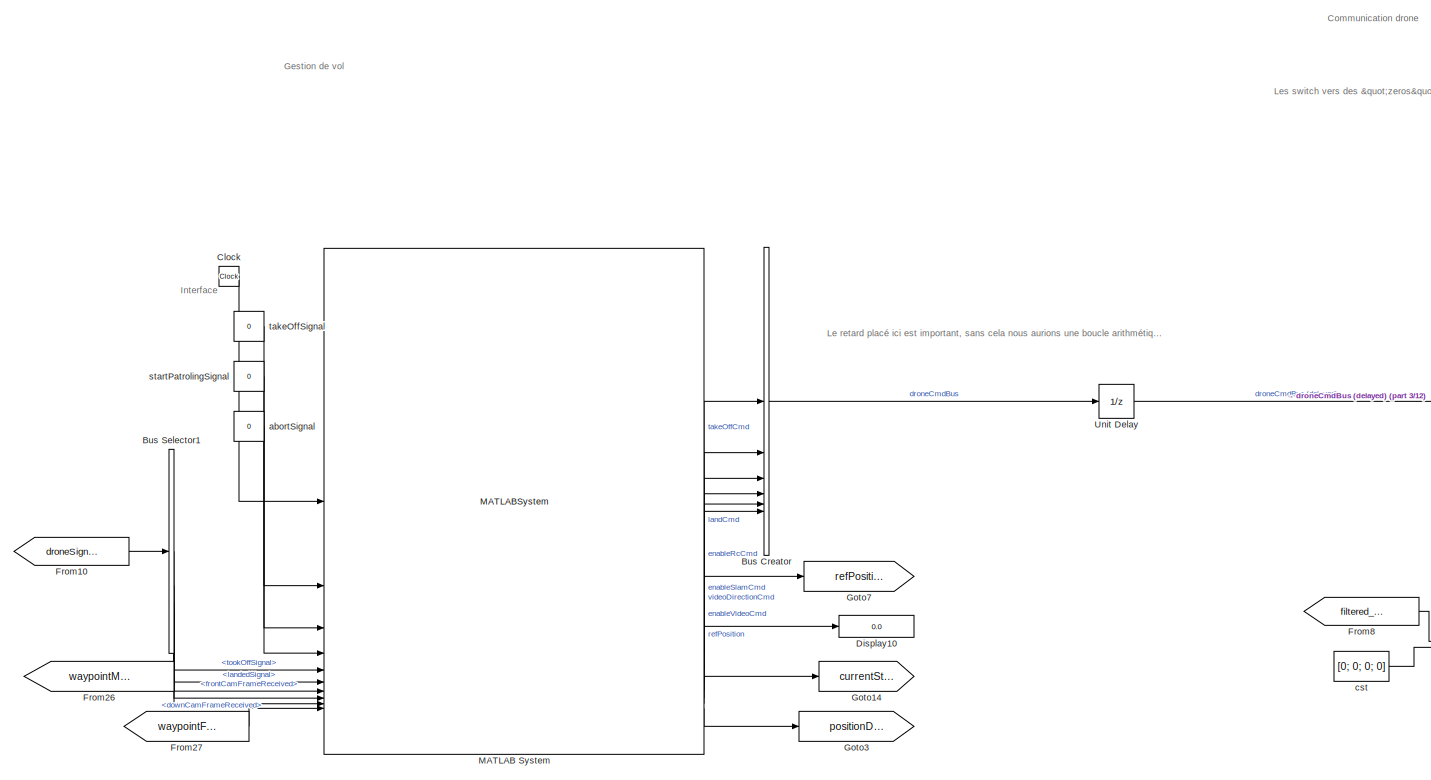
[diagram: root canvas - part 1/12, top center region]
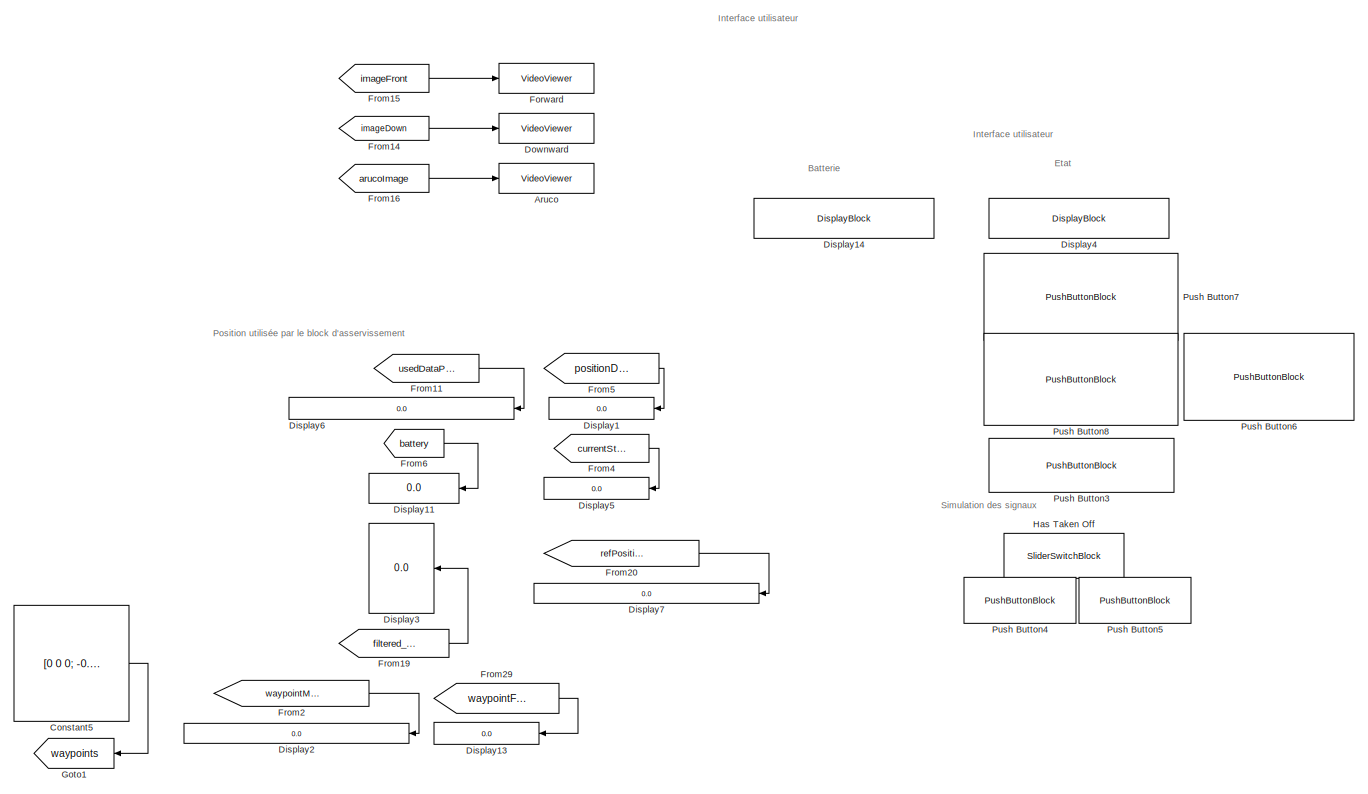
[diagram: root canvas - part 2/12, top left region]
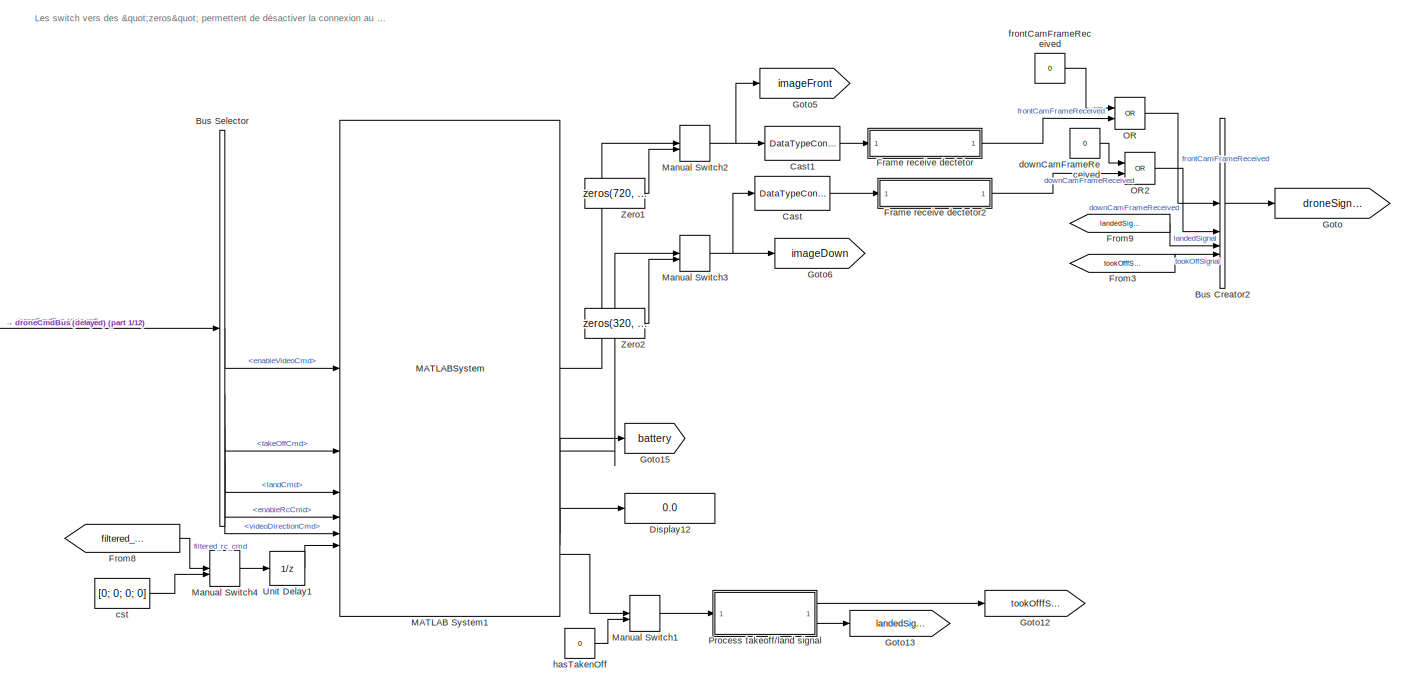
[diagram: root canvas - part 3/12, top right region]
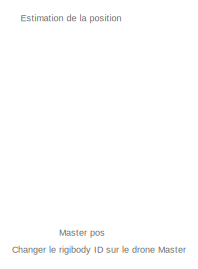
[diagram: root canvas - part 4/12, middle left region]
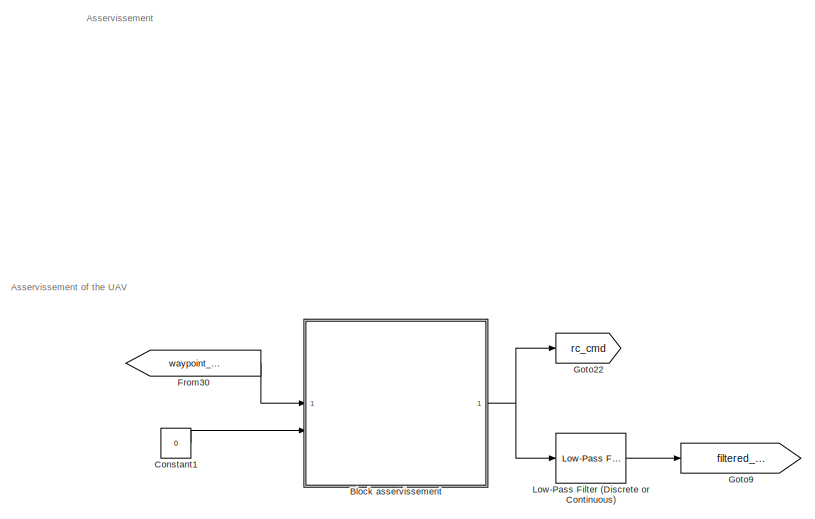
[diagram: root canvas - part 5/12, middle right region]
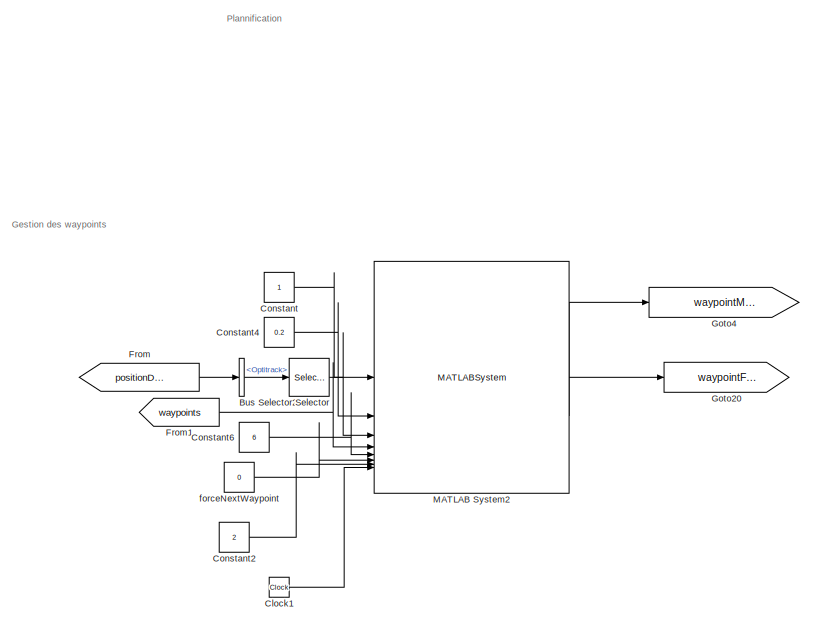
[diagram: root canvas - part 6/12, central region]
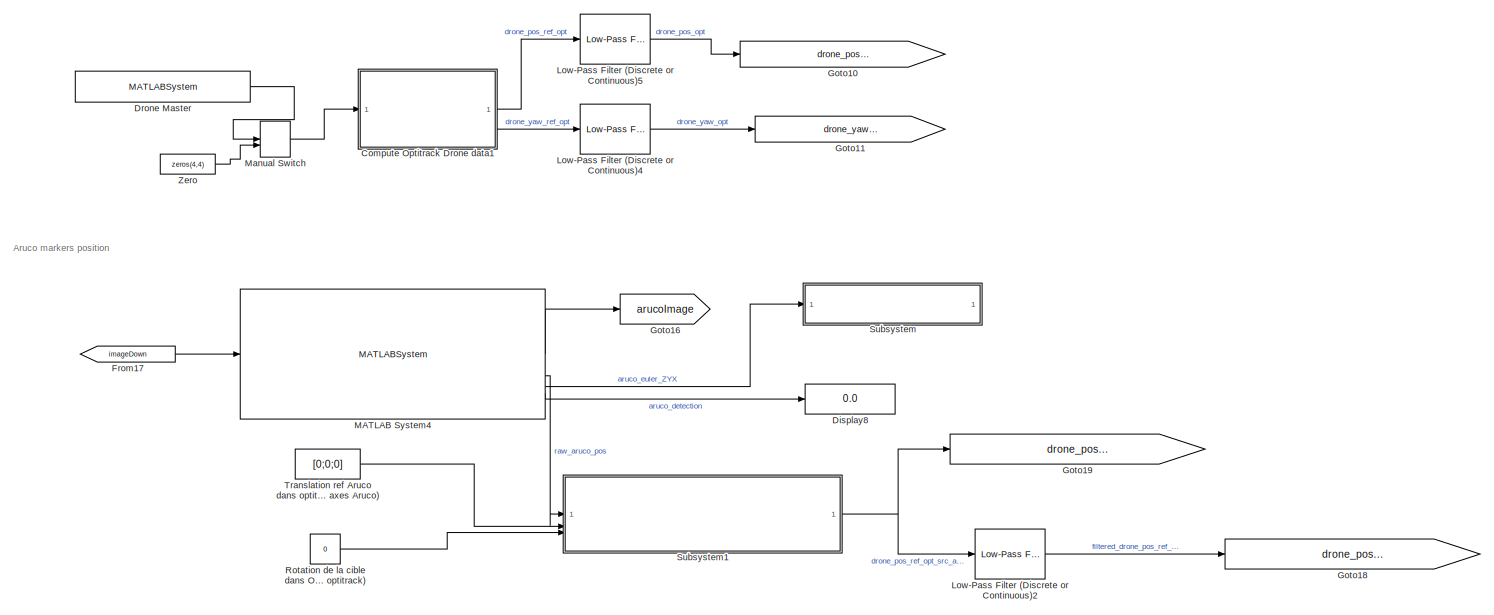
[diagram: root canvas - part 7/12, bottom left region]
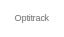
[diagram: root canvas - part 8/12, middle left region]
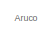
[diagram: root canvas - part 9/12, bottom left region]
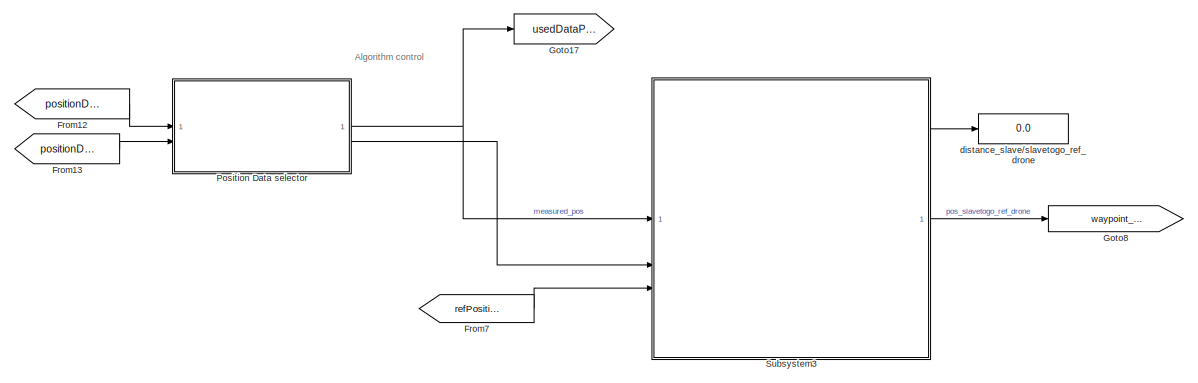
[diagram: root canvas - part 10/12, bottom center region]
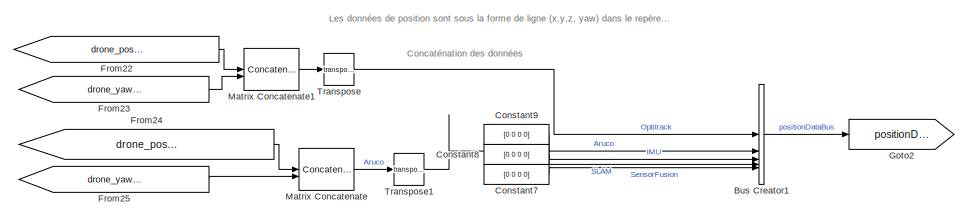
[diagram: root canvas - part 11/12, bottom left region]
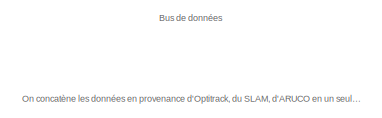
[diagram: root canvas - part 12/12, bottom left region]
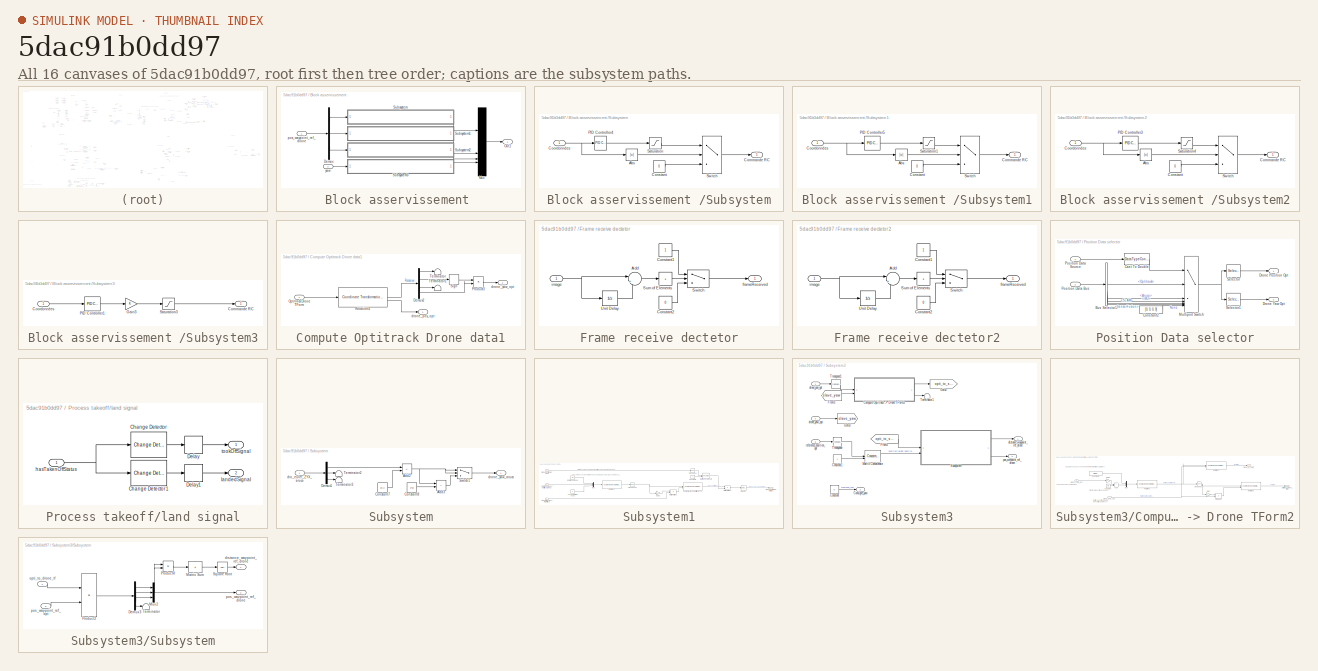
[diagram: thumbnail index - all 16 canvases of the model, root first then tree order]
MODEL slx_5dac91b0dd97
KIND model
CONFIG AbsTol = auto
CONFIG EnableMultiTasking = off
CONFIG FixedStep = 0.1
CONFIG MaxStep = auto
CONFIG MinStep = auto
CONFIG RelTol = 1e-3
CONFIG SampleTimeConstraint = Unconstrained
CONFIG SolverName = ode1
CONFIG StartTime = 0.0
CONFIG StopTime = inf
BLOCK [VideoViewer] Aruco
  FigPos = [1259 530 247.333333333333 297.333333333333]
  ScopeSpecificationString = vipscopes.VideoViewerScopeCfg('CurrentConfiguration', extmgr.ConfigurationSet(extmgr.Configuration('Core','General UI',true),extmgr.Configuration('Core','Source UI',true),extmgr.Configuration('Sources','WiredSimulink',true),extmgr.Configuration('Visuals','Video',true),extmgr.Configuration('Tools','Image Navigation Tools',true),extmgr.Configuration('Tools','Image Tool',true),extmgr.Configuration('T...<+115ch>
BLOCK [SubSystem] Block asservissement 
BLOCK [Demux] Block asservissement /Demux
  Outputs = 3
BLOCK [Mux] Block asservissement /Mux
  DisplayOption = bar
BLOCK [Outport] Block asservissement /Out1
BLOCK [SubSystem] Block asservissement /Subsystem
BLOCK [Abs] Block asservissement /Subsystem/Abs
  SaturateOnIntegerOverflow = off
BLOCK [Outport] Block asservissement /Subsystem/Commande RC
BLOCK [Constant] Block asservissement /Subsystem/Constant
  Value = 0
BLOCK [Inport] Block asservissement /Subsystem/Coordonnées
BLOCK [Reference] Block asservissement /Subsystem/PID Controller4  REF=slpidlib/PID Controller
  LibrarySourceBlock = simulink/Continuous/PID Controller
  SourceBlock = slpidlib/PID Controller
  SourceType = PID 1dof
BLOCK [Saturate] Block asservissement /Subsystem/Saturation
  LowerLimit = -30
  UpperLimit = 30
BLOCK [Switch] Block asservissement /Subsystem/Switch
  Criteria = u2 > Threshold
  InputSameDT = off
  SaturateOnIntegerOverflow = off
  Threshold = 0.01
BLOCK [SubSystem] Block asservissement /Subsystem1
BLOCK [Abs] Block asservissement /Subsystem1/Abs
  SaturateOnIntegerOverflow = off
BLOCK [Outport] Block asservissement /Subsystem1/Commande RC
BLOCK [Constant] Block asservissement /Subsystem1/Constant
  Value = 0
BLOCK [Inport] Block asservissement /Subsystem1/Coordonnées
BLOCK [Reference] Block asservissement /Subsystem1/PID Controller5  REF=slpidlib/PID Controller
  LibrarySourceBlock = simulink/Continuous/PID Controller
  SourceBlock = slpidlib/PID Controller
  SourceType = PID 1dof
BLOCK [Saturate] Block asservissement /Subsystem1/Saturation1
  LowerLimit = -30
  UpperLimit = 30
BLOCK [Switch] Block asservissement /Subsystem1/Switch
  Criteria = u2 > Threshold
  InputSameDT = off
  SaturateOnIntegerOverflow = off
  Threshold = 0.01
BLOCK [SubSystem] Block asservissement /Subsystem2
BLOCK [Abs] Block asservissement /Subsystem2/Abs
  SaturateOnIntegerOverflow = off
BLOCK [Outport] Block asservissement /Subsystem2/Commande RC
BLOCK [Constant] Block asservissement /Subsystem2/Constant
  Value = 0
BLOCK [Inport] Block asservissement /Subsystem2/Coordonnées
BLOCK [Reference] Block asservissement /Subsystem2/PID Controller3  REF=slpidlib/PID Controller
  LibrarySourceBlock = simulink/Continuous/PID Controller
  SourceBlock = slpidlib/PID Controller
  SourceType = PID 1dof
BLOCK [Saturate] Block asservissement /Subsystem2/Saturation4
  LowerLimit = -30
  UpperLimit = 30
BLOCK [Switch] Block asservissement /Subsystem2/Switch
  Criteria = u2 > Threshold
  InputSameDT = off
  SaturateOnIntegerOverflow = off
  Threshold = 0.01
BLOCK [SubSystem] Block asservissement /Subsystem3
BLOCK [Outport] Block asservissement /Subsystem3/Commande RC
BLOCK [Inport] Block asservissement /Subsystem3/Coordonnées
BLOCK [Gain] Block asservissement /Subsystem3/Gain3
BLOCK [Reference] Block asservissement /Subsystem3/PID Controller1  REF=slpidlib/PID Controller
  LibrarySourceBlock = simulink/Continuous/PID Controller
  SourceBlock = slpidlib/PID Controller
  SourceType = PID 1dof
BLOCK [Saturate] Block asservissement /Subsystem3/Saturation3
  LowerLimit = -50
  UpperLimit = 50
BLOCK [Inport] Block asservissement /pos_waypoint_ref_drone
BLOCK [Inport] Block asservissement /yaw
  Port = 2
BLOCK [BusCreator] Bus Creator
  DisplayOption = bar
  InheritFromInputs = on
  Inputs = 6
BLOCK [BusCreator] Bus Creator1
  DisplayOption = bar
  InheritFromInputs = on
  Inputs = 5
BLOCK [BusCreator] Bus Creator2
  DisplayOption = bar
  InheritFromInputs = on
  Inputs = 4
BLOCK [BusSelector] Bus Selector
  OutputSignals = enableVideoCmd,takeOffCmd,landCmd,enableRcCmd,videoDirectionCmd
BLOCK [BusSelector] Bus Selector1
  OutputSignals = tookOffSignal,landedSignal,frontCamFrameReceived,downCamFrameReceived
BLOCK [BusSelector] Bus Selector2
  OutputSignals = Optitrack
BLOCK [DataTypeConversion] Cast
  RndMeth = Floor
  SaturateOnIntegerOverflow = off
BLOCK [DataTypeConversion] Cast1
  RndMeth = Floor
  SaturateOnIntegerOverflow = off
BLOCK [Clock] Clock
BLOCK [Clock] Clock1
BLOCK [SubSystem] Compute Optitrack Drone data1
BLOCK [Demux] Compute Optitrack Drone data1/Demux2
BLOCK [Inport] Compute Optitrack Drone data1/Optitrack Drone TForm
BLOCK [Product] Compute Optitrack Drone data1/Product3
BLOCK [Reference] Compute Optitrack Drone data1/Rotation4  REF=robotcorelib/Coordinate Transformation Conversion
  LibrarySourceBlock = uavutilslib/Coordinate Transformation Conversion
  SourceBlock = robotcorelib/Coordinate Transformation Conversion
  SourceType = robotics.slcore.internal.block.CoordinateTransformationConversion
BLOCK [Signum] Compute Optitrack Drone data1/Sign
BLOCK [Terminator] Compute Optitrack Drone data1/Terminator
BLOCK [Terminator] Compute Optitrack Drone data1/Terminator1
BLOCK [Outport] Compute Optitrack Drone data1/drone_pos_opt
BLOCK [Outport] Compute Optitrack Drone data1/drone_yaw_opt
  Port = 2
BLOCK [Constant] Constant
BLOCK [Constant] Constant1
  Value = 0
BLOCK [Constant] Constant2
  Value = 2
BLOCK [Constant] Constant4
  Value = 0.2
BLOCK [Constant] Constant5
  Value = [0 0 0; -0.5 1 0.5;  0.5 2 0.5; 0.5 1 -0.5; -0.5 2 0.5; 0 1 0]
BLOCK [Constant] Constant6
  Value = 6
BLOCK [Constant] Constant7
  Value = [0 0 0 0]
BLOCK [Constant] Constant8
  Value = [0 0 0 0]
BLOCK [Constant] Constant9
  Value = [0 0 0 0]
BLOCK [Display] Display1
  Decimation = 1
  NameLocation = top
BLOCK [Display] Display10
  Decimation = 1
BLOCK [Display] Display11
  Decimation = 1
  NameLocation = top
BLOCK [Display] Display12
  Decimation = 1
BLOCK [Display] Display13
  Decimation = 1
  NameLocation = top
BLOCK [DisplayBlock] Display14
  Format = Custom
  FormatString = Battery : %s/100
  LabelPosition = Hide
  Transparency = 1
BLOCK [Display] Display2
  Decimation = 1
  NameLocation = top
BLOCK [Display] Display3
  Decimation = 1
  NameLocation = top
BLOCK [DisplayBlock] Display4
  Format = Integer
  FormatString = %s
  LabelPosition = Hide
  Transparency = 1
BLOCK [Display] Display5
  Decimation = 1
  NameLocation = top
BLOCK [Display] Display6
  Decimation = 1
  NameLocation = top
BLOCK [Display] Display7
  Decimation = 1
  NameLocation = top
BLOCK [Display] Display8
  Decimation = 1
BLOCK [VideoViewer] Downward
  Commented = on
  FigPos = [1261.66666666667 919.333333333333 248 307.333333333333]
  ScopeSpecificationString = vipscopes.VideoViewerScopeCfg('CurrentConfiguration', extmgr.ConfigurationSet(extmgr.Configuration('Core','General UI',true),extmgr.Configuration('Core','Source UI',true),extmgr.Configuration('Sources','WiredSimulink',true),extmgr.Configuration('Visuals','Video',true),extmgr.Configuration('Tools','Image Navigation Tools',true),extmgr.Configuration('Tools','Image Tool',true),extmgr.Configuration('T...<+140ch>
BLOCK [MATLABSystem] Drone Master
  ClientIP = 10.147.125.17
  HostIP = 10.147.125.15
  MaskDisplay = disp('OptilinkSystem');\nport_label('output',1,'Drones data');\nport_label('output',2,'Connected');
  MaskType = OptilinkSystem
  RigidbodyID = 1
  SimulateUsing = Interpreted execution
  System = OptilinkSystem
BLOCK [VideoViewer] Forward
  FigPos = [616.333333333333 756 875.333333333333 522.666666666667]
  ScopeSpecificationString = vipscopes.VideoViewerScopeCfg('CurrentConfiguration', extmgr.ConfigurationSet(extmgr.Configuration('Core','General UI',true),extmgr.Configuration('Core','Source UI',true),extmgr.Configuration('Sources','WiredSimulink',true),extmgr.Configuration('Visuals','Video',true),extmgr.Configuration('Tools','Image Navigation Tools',true),extmgr.Configuration('Tools','Image Tool',true),extmgr.Configuration('T...<+127ch>
BLOCK [SubSystem] Frame receive dectetor
BLOCK [Sum] Frame receive dectetor/Add
  Inputs = |+-
BLOCK [Constant] Frame receive dectetor/Constant1
BLOCK [Constant] Frame receive dectetor/Constant2
  Value = 0
BLOCK [Sum] Frame receive dectetor/Sum of Elements
  IconShape = rectangular
  Inputs = +
BLOCK [Switch] Frame receive dectetor/Switch
  Criteria = u2 > Threshold
  InputSameDT = off
  SaturateOnIntegerOverflow = off
BLOCK [UnitDelay] Frame receive dectetor/Unit Delay
  HasFrameUpgradeWarning = on
  SampleTime = -1
BLOCK [Outport] Frame receive dectetor/frameReceived
BLOCK [Inport] Frame receive dectetor/image
BLOCK [SubSystem] Frame receive dectetor2
BLOCK [Sum] Frame receive dectetor2/Add
  Inputs = |+-
BLOCK [Constant] Frame receive dectetor2/Constant1
BLOCK [Constant] Frame receive dectetor2/Constant2
  Value = 0
BLOCK [Sum] Frame receive dectetor2/Sum of Elements
  IconShape = rectangular
  Inputs = +
BLOCK [Switch] Frame receive dectetor2/Switch
  Criteria = u2 > Threshold
  InputSameDT = off
  SaturateOnIntegerOverflow = off
BLOCK [UnitDelay] Frame receive dectetor2/Unit Delay
  HasFrameUpgradeWarning = on
  SampleTime = -1
BLOCK [Outport] Frame receive dectetor2/frameReceived
BLOCK [Inport] Frame receive dectetor2/image
BLOCK [From] From
  GotoTag = positionDataBus
BLOCK [From] From1
  GotoTag = waypoints
BLOCK [From] From10
  GotoTag = droneSignalBus
BLOCK [From] From11
  GotoTag = usedDataPos
BLOCK [From] From12
  GotoTag = positionDataSrc
BLOCK [From] From13
  GotoTag = positionDataBus
BLOCK [From] From14
  GotoTag = imageDown
BLOCK [From] From15
  GotoTag = imageFront
BLOCK [From] From16
  GotoTag = arucoImage
BLOCK [From] From17
  GotoTag = imageDown
BLOCK [From] From19
  GotoTag = filtered_rc_cmd
BLOCK [From] From2
  GotoTag = waypointManagerOut
BLOCK [From] From20
  GotoTag = refPosition
BLOCK [From] From22
  GotoTag = drone_pos_master_opt_filtered
BLOCK [From] From23
  GotoTag = drone_yaw_master_opt_filtered
BLOCK [From] From24
  GotoTag = drone_pos_ref_opt_src_aruco_filtered
BLOCK [From] From25
  GotoTag = drone_yaw_master_opt_filtered
BLOCK [From] From26
  GotoTag = waypointManagerOut
BLOCK [From] From27
  GotoTag = waypointFinished
BLOCK [From] From29
  GotoTag = waypointFinished
BLOCK [From] From3
  GotoTag = tookOfffSignal
BLOCK [From] From30
  GotoTag = waypoint_pos_ref_drone
BLOCK [From] From4
  GotoTag = currentState
BLOCK [From] From5
  GotoTag = positionDataSrc
BLOCK [From] From6
  GotoTag = battery
BLOCK [From] From7
  GotoTag = refPosition
BLOCK [From] From8
  GotoTag = filtered_rc_cmd
BLOCK [From] From9
  GotoTag = landedSignal
BLOCK [Goto] Goto
  GotoTag = droneSignalBus
BLOCK [Goto] Goto1
  GotoTag = waypoints
  NameLocation = top
BLOCK [Goto] Goto10
  GotoTag = drone_pos_master_opt_filtered
BLOCK [Goto] Goto11
  GotoTag = drone_yaw_master_opt_filtered
BLOCK [Goto] Goto12
  GotoTag = tookOfffSignal
BLOCK [Goto] Goto13
  GotoTag = landedSignal
BLOCK [Goto] Goto14
  GotoTag = currentState
BLOCK [Goto] Goto15
  GotoTag = battery
BLOCK [Goto] Goto16
  GotoTag = arucoImage
BLOCK [Goto] Goto17
  GotoTag = usedDataPos
BLOCK [Goto] Goto18
  GotoTag = drone_pos_ref_opt_src_aruco_filtered
BLOCK [Goto] Goto19
  GotoTag = drone_pos_ref_opt_src_aruco
BLOCK [Goto] Goto2
  GotoTag = positionDataBus
BLOCK [Goto] Goto20
  GotoTag = waypointFinished
BLOCK [Goto] Goto22
  GotoTag = rc_cmd
BLOCK [Goto] Goto3
  GotoTag = positionDataSrc
BLOCK [Goto] Goto4
  GotoTag = waypointManagerOut
BLOCK [Goto] Goto5
  GotoTag = imageFront
BLOCK [Goto] Goto6
  GotoTag = imageDown
BLOCK [Goto] Goto7
  GotoTag = refPosition
BLOCK [Goto] Goto8
  GotoTag = waypoint_pos_ref_drone
BLOCK [Goto] Goto9
  GotoTag = filtered_rc_cmd
BLOCK [SliderSwitchBlock] Has Taken Off
BLOCK [Reference] Low-Pass Filter (Discrete or Continuous)  REF=eeGeneralControl/Low-Pass Filter
(Discrete or Continuous)
  LibrarySourceBlock = ee_sl_lib/General Control/Low-Pass Filter\n(Discrete or Continuous)
  SourceBlock = eeGeneralControl/Low-Pass Filter\n(Discrete or Continuous)
  SourceType = Low-Pass Filter (Discrete or Continuous)
BLOCK [Reference] Low-Pass Filter (Discrete or Continuous)2  REF=eeGeneralControl/Low-Pass Filter
(Discrete or Continuous)
  LibrarySourceBlock = ee_sl_lib/General Control/Low-Pass Filter\n(Discrete or Continuous)
  SourceBlock = eeGeneralControl/Low-Pass Filter\n(Discrete or Continuous)
  SourceType = Low-Pass Filter (Discrete or Continuous)
BLOCK [Reference] Low-Pass Filter (Discrete or Continuous)4  REF=eeGeneralControl/Low-Pass Filter
(Discrete or Continuous)
  LibrarySourceBlock = ee_sl_lib/General Control/Low-Pass Filter\n(Discrete or Continuous)
  SourceBlock = eeGeneralControl/Low-Pass Filter\n(Discrete or Continuous)
  SourceType = Low-Pass Filter (Discrete or Continuous)
BLOCK [Reference] Low-Pass Filter (Discrete or Continuous)5  REF=eeGeneralControl/Low-Pass Filter
(Discrete or Continuous)
  LibrarySourceBlock = ee_sl_lib/General Control/Low-Pass Filter\n(Discrete or Continuous)
  SourceBlock = eeGeneralControl/Low-Pass Filter\n(Discrete or Continuous)
  SourceType = Low-Pass Filter (Discrete or Continuous)
BLOCK [MATLABSystem] MATLAB System
  HomePosition = [ 0, 1.5, 0 ]
  MaskDisplay = disp('DroneSequenceManager');\nport_label('input',1,'time');\nport_label('input',2,'takeOffSignal');\nport_label('input',3,'startPatrolingSignal');\nport_label('input',4,'abortSignal');\nport_label('input',5,'tookOffSignal');\nport_label('input',6,'landedSignal');\nport_label('input',7,'frontCamFrameReceived');\nport_label('input',8,'downCamFrameReceived');\nport_label('input',9,'waypointToFollow');\nport_l...<+414ch>
  MaskType = DroneSequenceManager
  SimulateUsing = Code generation
  System = DroneSequenceManager
BLOCK [MATLABSystem] MATLAB System1
  MaskDisplay = disp('Tello_drone_control');\nport_label('input',1,'enableVideo');\nport_label('input',2,'tkoff');\nport_label('input',3,'landing');\nport_label('input',4,'enableRC');\nport_label('input',5,'cmdVideoDirection');\nport_label('input',6,'rcspeeds');\nport_label('output',1,'imageFront');\nport_label('output',2,'imageDown');\nport_label('output',3,'Eulerangles');\nport_label('output',4,'speedXYZ');\nport_label('o...<+117ch>
  MaskType = Tello_drone_control
  SimulateUsing = Interpreted execution
  System = Tello_drone_control
  droneIP = 127.0.0.1
BLOCK [MATLABSystem] MATLAB System2
  MaskDisplay = disp('WaypointManager');\nport_label('input',1,'enable');\nport_label('input',2,'acceptableDistance');\nport_label('input',3,'currentPos');\nport_label('input',4,'waypoints');\nport_label('input',5,'numWaypoints');\nport_label('input',6,'forceNextWaypoint');\nport_label('input',7,'requiredTime');\nport_label('input',8,'time');\nport_label('output',1,'waypoint');\nport_label('output',2,'finished');\nport_labe...<+36ch>
  MaskType = WaypointManager
  SimulateUsing = Code generation
  System = WaypointManager
BLOCK [MATLABSystem] MATLAB System4
  MaskDisplay = disp('ArucoMarkerDetection');\nport_label('input',1,'I');\nport_label('output',1,'output_image');\nport_label('output',2,'camera_pos_ref_aruco');\nport_label('output',3,'euler_angles');\nport_label('output',4,'detection');
  MaskType = ArucoMarkerDetection
  SimulateUsing = Interpreted execution
  System = ArucoMarkerDetection
  focalLength = [222.5, 224]
  imageSize = [240,320]
  markerFamily = DICT_4X4_250
  markerSizeInMM = 150
  maxMarkers = 1
  principalPoint = [156 ,116]
BLOCK [ManualSwitch] Manual Switch
BLOCK [ManualSwitch] Manual Switch1
BLOCK [ManualSwitch] Manual Switch2
BLOCK [ManualSwitch] Manual Switch3
BLOCK [ManualSwitch] Manual Switch4
BLOCK [Concatenate] Matrix Concatenate
  ConcatenateDimension = 2
BLOCK [Concatenate] Matrix Concatenate1
  ConcatenateDimension = 2
BLOCK [Logic] OR
  AllPortsSameDT = off
  IconShape = distinctive
  Operator = OR
  OutDataTypeStr = boolean
BLOCK [Logic] OR2
  AllPortsSameDT = off
  IconShape = distinctive
  Operator = OR
  OutDataTypeStr = boolean
BLOCK [SubSystem] Position Data selector
BLOCK [BusSelector] Position Data selector/Bus Selector3
  OutputSignals = Optitrack,Aruco,IMU,SLAM,SensorFusion
BLOCK [DataTypeConversion] Position Data selector/Cast To Double
  OutDataTypeStr = double
  RndMeth = Floor
  SaturateOnIntegerOverflow = off
BLOCK [Constant] Position Data selector/Constant2
  Value = [0, 0, 0, 0]
BLOCK [Outport] Position Data selector/Drone Position Opt
BLOCK [Outport] Position Data selector/Drone Yaw Opt
  Port = 2
BLOCK [MultiPortSwitch] Position Data selector/Multiport Switch
  DataPortIndices = {2,3,4,5,6,1}
  DataPortOrder = Specify indices
  DiagnosticForDefault = None
  InputSameDT = off
  Inputs = 6
  SaturateOnIntegerOverflow = off
BLOCK [Inport] Position Data selector/Position Data Bus
  Port = 2
BLOCK [Inport] Position Data selector/Position Data Source
BLOCK [Selector] Position Data selector/Selector
  IndexOptions = Index vector (dialog)
  Indices = [1 2 3]
  InputPortWidth = 4
  OutputSizes = 1
BLOCK [Selector] Position Data selector/Selector1
  IndexOptions = Index vector (dialog)
  Indices = [4]
  InputPortWidth = 4
  OutputSizes = 1
BLOCK [SubSystem] Process takeoff//land signal
BLOCK [Reference] Process takeoff//land signal/Change Detector  REF=eeGeneralControl/Change Detector
  LibrarySourceBlock = ee_sl_lib/General Control/Change Detector
  SourceBlock = eeGeneralControl/Change Detector
  SourceType = Change Detector
BLOCK [Reference] Process takeoff//land signal/Change Detector1  REF=eeGeneralControl/Change Detector
  LibrarySourceBlock = ee_sl_lib/General Control/Change Detector
  SourceBlock = eeGeneralControl/Change Detector
  SourceType = Change Detector
BLOCK [Delay] Process takeoff//land signal/Delay
  DelayLength = 20
  InputPortMap = u0
BLOCK [Delay] Process takeoff//land signal/Delay1
  DelayLength = 20
  InputPortMap = u0
BLOCK [Inport] Process takeoff//land signal/hasTakenOffStatus 
BLOCK [Outport] Process takeoff//land signal/landedSignal
  Port = 2
BLOCK [Outport] Process takeoff//land signal/tookOffSignal
BLOCK [PushButtonBlock] Push Button3
  ButtonText = Force next waypoint
  OffValue = 0.000000
BLOCK [PushButtonBlock] Push Button4
  ButtonText = Front cam received
  OffValue = 0.000000
BLOCK [PushButtonBlock] Push Button5
  ButtonText = Down cam received
  OffValue = 0.000000
BLOCK [PushButtonBlock] Push Button6
  ButtonText = Start patrol
  OffValue = 0.000000
  Opacity = 0.8
BLOCK [PushButtonBlock] Push Button7
  ButtonText = Take off
  OffValue = 0.000000
BLOCK [PushButtonBlock] Push Button8
  ButtonText = Land
  OffValue = 0.000000
BLOCK [Constant] Rotation de la cible dans Optitrack (Axe Y optitrack)
  Value = 0
BLOCK [Selector] Selector
  IndexOptions = Index vector (dialog)
  Indices = [1 2 3]
  InputPortWidth = 4
  OutputSizes = 1
BLOCK [SubSystem] Subsystem
BLOCK [Sum] Subsystem/Add2
  IconShape = rectangular
  Inputs = +-
BLOCK [Sum] Subsystem/Add3
  IconShape = rectangular
BLOCK [Constant] Subsystem/Constant7
  Value = pi/2
BLOCK [Constant] Subsystem/Constant8
  Value = 2*pi
BLOCK [Demux] Subsystem/Demux1
  Outputs = 3
BLOCK [Switch] Subsystem/Switch1
  Criteria = u2 > Threshold
  InputSameDT = off
  SaturateOnIntegerOverflow = off
  Threshold = -pi
BLOCK [Terminator] Subsystem/Terminator2
BLOCK [Terminator] Subsystem/Terminator3
BLOCK [Inport] Subsystem/dro_euler_ZYX_aruco
BLOCK [Outport] Subsystem/drone_yaw_aruco
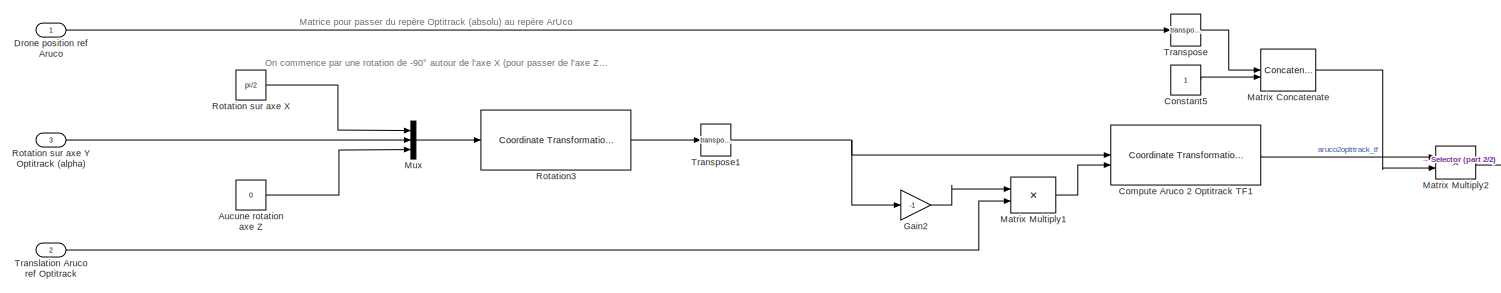
[diagram: Subsystem1 - part 1/2, most of the canvas]
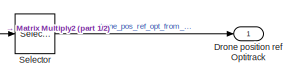
[diagram: Subsystem1 - part 2/2, middle right region]
BLOCK [SubSystem] Subsystem1
BLOCK [Constant] Subsystem1/Aucune rotation axe Z
  Value = 0
BLOCK [Reference] Subsystem1/Compute Aruco 2 Optitrack TF1  REF=robotcorelib/Coordinate Transformation Conversion
  LibrarySourceBlock = uavutilslib/Coordinate Transformation Conversion
  SourceBlock = robotcorelib/Coordinate Transformation Conversion
  SourceType = robotics.slcore.internal.block.CoordinateTransformationConversion
BLOCK [Constant] Subsystem1/Constant5
BLOCK [Inport] Subsystem1/Drone position ref Aruco
BLOCK [Outport] Subsystem1/Drone position ref Optitrack
BLOCK [Gain] Subsystem1/Gain2
  Gain = -1
BLOCK [Concatenate] Subsystem1/Matrix Concatenate
  ConcatenateDimension = 2
BLOCK [Product] Subsystem1/Matrix Multiply1
  Multiplication = Matrix(*)
BLOCK [Product] Subsystem1/Matrix Multiply2
  Multiplication = Matrix(*)
BLOCK [Mux] Subsystem1/Mux
  DisplayOption = bar
  Inputs = 3
BLOCK [Constant] Subsystem1/Rotation sur axe X
  Value = pi/2
BLOCK [Inport] Subsystem1/Rotation sur axe Y Optitrack (alpha)
  Port = 3
BLOCK [Reference] Subsystem1/Rotation3  REF=robotcorelib/Coordinate Transformation Conversion
  LibrarySourceBlock = uavutilslib/Coordinate Transformation Conversion
  SourceBlock = robotcorelib/Coordinate Transformation Conversion
  SourceType = robotics.slcore.internal.block.CoordinateTransformationConversion
BLOCK [Selector] Subsystem1/Selector
  IndexOptions = Index vector (dialog)
  Indices = [1 2 3]
  InputPortWidth = 4
  OutputSizes = 1
BLOCK [Inport] Subsystem1/Translation Aruco ref Optitrack
  Port = 2
BLOCK [Math] Subsystem1/Transpose
  Operator = transpose
BLOCK [Math] Subsystem1/Transpose1
  Operator = transpose
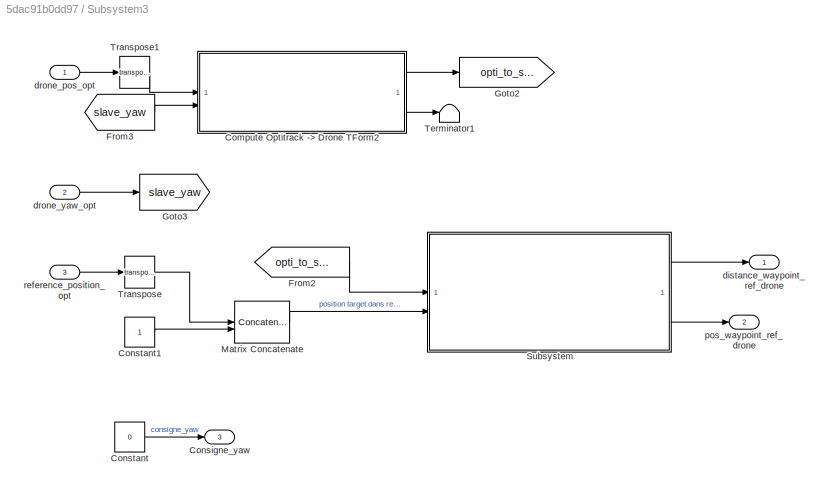
BLOCK [SubSystem] Subsystem3
BLOCK [SubSystem] Subsystem3/Compute Optitrack -> Drone TForm2
BLOCK [Sum] Subsystem3/Compute Optitrack -> Drone TForm2/Add
  IconShape = rectangular
BLOCK [Constant] Subsystem3/Compute Optitrack -> Drone TForm2/Constant
  Value = pi/2
BLOCK [Constant] Subsystem3/Compute Optitrack -> Drone TForm2/Constant1
  Value = [pi/2; 0]
BLOCK [Gain] Subsystem3/Compute Optitrack -> Drone TForm2/Gain
  Gain = -1
BLOCK [Gain] Subsystem3/Compute Optitrack -> Drone TForm2/Gain2
  Gain = -1
BLOCK [Mux] Subsystem3/Compute Optitrack -> Drone TForm2/Mux
  DisplayOption = bar
  Inputs = 2
BLOCK [Product] Subsystem3/Compute Optitrack -> Drone TForm2/Product1
  Multiplication = Matrix(*)
BLOCK [Reference] Subsystem3/Compute Optitrack -> Drone TForm2/Rotation1  REF=robotcorelib/Coordinate Transformation Conversion
  LibrarySourceBlock = uavutilslib/Coordinate Transformation Conversion
  SourceBlock = robotcorelib/Coordinate Transformation Conversion
  SourceType = robotics.slcore.internal.block.CoordinateTransformationConversion
BLOCK [Reference] Subsystem3/Compute Optitrack -> Drone TForm2/Rotation2  REF=robotcorelib/Coordinate Transformation Conversion
  LibrarySourceBlock = uavutilslib/Coordinate Transformation Conversion
  SourceBlock = robotcorelib/Coordinate Transformation Conversion
  SourceType = robotics.slcore.internal.block.CoordinateTransformationConversion
BLOCK [Reference] Subsystem3/Compute Optitrack -> Drone TForm2/Rotation3  REF=robotcorelib/Coordinate Transformation Conversion
  LibrarySourceBlock = uavutilslib/Coordinate Transformation Conversion
  SourceBlock = robotcorelib/Coordinate Transformation Conversion
  SourceType = robotics.slcore.internal.block.CoordinateTransformationConversion
BLOCK [Math] Subsystem3/Compute Optitrack -> Drone TForm2/Transpose1
  Operator = transpose
BLOCK [Inport] Subsystem3/Compute Optitrack -> Drone TForm2/drone_pos_opt
BLOCK [Outport] Subsystem3/Compute Optitrack -> Drone TForm2/drone_to_opti_tf
  Port = 2
BLOCK [Inport] Subsystem3/Compute Optitrack -> Drone TForm2/drone_yaw_opt
  Port = 2
BLOCK [Outport] Subsystem3/Compute Optitrack -> Drone TForm2/optitrack2drone_tform
BLOCK [Outport] Subsystem3/Consigne_yaw
  Port = 3
BLOCK [Constant] Subsystem3/Constant
  Value = 0
BLOCK [Constant] Subsystem3/Constant1
BLOCK [From] Subsystem3/From2
  GotoTag = opti_to_slave_tf
BLOCK [From] Subsystem3/From3
  GotoTag = slave_yaw
BLOCK [Goto] Subsystem3/Goto2
  GotoTag = opti_to_slave_tf
BLOCK [Goto] Subsystem3/Goto3
  GotoTag = slave_yaw
BLOCK [Concatenate] Subsystem3/Matrix Concatenate
  ConcatenateDimension = 2
BLOCK [SubSystem] Subsystem3/Subsystem
BLOCK [Demux] Subsystem3/Subsystem/Demux3
BLOCK [Sum] Subsystem3/Subsystem/Matrix Sum
  IconShape = rectangular
  Inputs = +
BLOCK [Mux] Subsystem3/Subsystem/Mux2
  DisplayOption = bar
  Inputs = 3
BLOCK [Product] Subsystem3/Subsystem/Product2
  Multiplication = Matrix(*)
BLOCK [Product] Subsystem3/Subsystem/Product4
BLOCK [Sqrt] Subsystem3/Subsystem/Square Root
BLOCK [Terminator] Subsystem3/Subsystem/Terminator
BLOCK [Outport] Subsystem3/Subsystem/distance_waypoint_ref_drone
BLOCK [Inport] Subsystem3/Subsystem/opti_to_drone_tf
BLOCK [Outport] Subsystem3/Subsystem/pos_waypoint_ref_drone
  Port = 2
BLOCK [Inport] Subsystem3/Subsystem/pos_waypoint_ref_opt
  Port = 2
BLOCK [Terminator] Subsystem3/Terminator1
BLOCK [Math] Subsystem3/Transpose
  Operator = transpose
BLOCK [Math] Subsystem3/Transpose1
  Operator = transpose
BLOCK [Outport] Subsystem3/distance_waypoint_ref_drone
BLOCK [Inport] Subsystem3/drone_pos_opt
BLOCK [Inport] Subsystem3/drone_yaw_opt
  Port = 2
BLOCK [Outport] Subsystem3/pos_waypoint_ref_drone
  Port = 2
BLOCK [Inport] Subsystem3/reference_position_opt
  Port = 3
BLOCK [Constant] Translation ref Aruco dans optitrack (dans les axes Aruco) 
  Value = [0;0;0]
BLOCK [Math] Transpose
  Operator = transpose
BLOCK [Math] Transpose1
  Operator = transpose
BLOCK [UnitDelay] Unit Delay
  HasFrameUpgradeWarning = on
  SampleTime = -1
BLOCK [UnitDelay] Unit Delay1
  HasFrameUpgradeWarning = on
  InitialCondition = [0,0,0,0]
  SampleTime = -1
BLOCK [Constant] Zero
  OutDataTypeStr = Inherit: Inherit via back propagation
  Value = zeros(4,4)
BLOCK [Constant] Zero1
  OutDataTypeStr = Inherit: Inherit via back propagation
  Value = zeros(720, 960, 3)
BLOCK [Constant] Zero2
  OutDataTypeStr = Inherit: Inherit via back propagation
  Value = zeros(320, 240)
BLOCK [Constant] abortSignal
  Value = 0
BLOCK [Constant] cst
  Value = [0; 0; 0; 0]
BLOCK [Display] distance_slave//slavetogo_ref_drone
  Decimation = 1
BLOCK [Constant] downCamFrameReceived
  Value = 0
BLOCK [Constant] forceNextWaypoint
  Value = 0
BLOCK [Constant] frontCamFrameReceived
  Value = 0
BLOCK [Constant] hasTakenOff
  Value = 0
BLOCK [Constant] startPatrolingSignal
  Value = 0
BLOCK [Constant] takeOffSignal
  Value = 0
ANNOTATION (root): Etat
ANNOTATION (root): Le retard placé ici est important, sans cela nous aurions une boucle arithmétique
ANNOTATION (root): Batterie
ANNOTATION (root): Interface utilisateur
ANNOTATION (root): Simulation des signaux
ANNOTATION (root): Les switch vers des "zeros" permettent de désactiver la connexion au drone lors de tests
ANNOTATION (root): On concatène les données en provenance d'Optitrack, du SLAM, d'ARUCO en un seul bus
ANNOTATION (root): Bus de données
ANNOTATION (root): Aruco
ANNOTATION (root): Estimation de la position
ANNOTATION (root): Optitrack
ANNOTATION (root): Asservissement
ANNOTATION (root): Communication drone
ANNOTATION (root): Gestion de vol
ANNOTATION (root): Plannification
ANNOTATION (root): Algorithm control
ANNOTATION (root): Aruco markers position
ANNOTATION (root): Asservissement of the UAV
ANNOTATION (root): Changer le rigibody ID sur le drone Master
ANNOTATION (root): Concaténation des données
ANNOTATION (root): Gestion des waypoints
ANNOTATION (root): Interface
ANNOTATION (root): Les données de position sont sous la forme de ligne (x,y,z, yaw) dans le repère absolu (Optitrack)
ANNOTATION (root): Master pos
ANNOTATION (root): Position utilisée par le block d'asservissement
ANNOTATION Subsystem1: Matrice pour passer du repère Optitrack (absolu) au repère ArUco
ANNOTATION Subsystem1: On commence par une rotation de -90° autour de l'axe X (pour passer de l'axe Z vers l'axe Y)
ANNOTATION Subsystem3/Compute Optitrack -> Drone TForm2: pi/2 Correspond au changement de référentiel Optitrack -> Drone
ANNOTATION Subsystem3/Compute Optitrack -> Drone TForm2: Optitrack position in meters in the Optitrack reference
ANNOTATION Subsystem3/Compute Optitrack -> Drone TForm2: Yaw angle expressed in radians
ANNOTATION Subsystem3/Compute Optitrack -> Drone TForm2: Offset pour la position de départ
LINE Block asservissement /Demux:1 -> Block asservissement /Subsystem:1
LINE Block asservissement /Demux:2 -> Block asservissement /Subsystem1:1
LINE Block asservissement /Demux:3 -> Block asservissement /Subsystem2:1
LINE Block asservissement /Mux:1 -> Block asservissement /Out1:1
LINE Block asservissement /Subsystem/Abs:1 -> Block asservissement /Subsystem/Switch:2
LINE Block asservissement /Subsystem/Constant:1 -> Block asservissement /Subsystem/Switch:3
NET Block asservissement /Subsystem/Coordonnées:1 -> Block asservissement /Subsystem/Abs:1, Block asservissement /Subsystem/PID Controller4:1
LINE Block asservissement /Subsystem/PID Controller4:1 -> Block asservissement /Subsystem/Saturation:1
LINE Block asservissement /Subsystem/Saturation:1 -> Block asservissement /Subsystem/Switch:1
LINE Block asservissement /Subsystem/Switch:1 -> Block asservissement /Subsystem/Commande RC:1
LINE Block asservissement /Subsystem1/Abs:1 -> Block asservissement /Subsystem1/Switch:2
LINE Block asservissement /Subsystem1/Constant:1 -> Block asservissement /Subsystem1/Switch:3
NET Block asservissement /Subsystem1/Coordonnées:1 -> Block asservissement /Subsystem1/Abs:1, Block asservissement /Subsystem1/PID Controller5:1
LINE Block asservissement /Subsystem1/PID Controller5:1 -> Block asservissement /Subsystem1/Saturation1:1
LINE Block asservissement /Subsystem1/Saturation1:1 -> Block asservissement /Subsystem1/Switch:1
LINE Block asservissement /Subsystem1/Switch:1 -> Block asservissement /Subsystem1/Commande RC:1
LINE Block asservissement /Subsystem1:1 -> Block asservissement /Mux:2
LINE Block asservissement /Subsystem2/Abs:1 -> Block asservissement /Subsystem2/Switch:2
LINE Block asservissement /Subsystem2/Constant:1 -> Block asservissement /Subsystem2/Switch:3
NET Block asservissement /Subsystem2/Coordonnées:1 -> Block asservissement /Subsystem2/Abs:1, Block asservissement /Subsystem2/PID Controller3:1
LINE Block asservissement /Subsystem2/PID Controller3:1 -> Block asservissement /Subsystem2/Saturation4:1
LINE Block asservissement /Subsystem2/Saturation4:1 -> Block asservissement /Subsystem2/Switch:1
LINE Block asservissement /Subsystem2/Switch:1 -> Block asservissement /Subsystem2/Commande RC:1
LINE Block asservissement /Subsystem2:1 -> Block asservissement /Mux:3
LINE Block asservissement /Subsystem3/Coordonnées:1 -> Block asservissement /Subsystem3/PID Controller1:1
LINE Block asservissement /Subsystem3/Gain3:1 -> Block asservissement /Subsystem3/Saturation3:1
LINE Block asservissement /Subsystem3/PID Controller1:1 -> Block asservissement /Subsystem3/Gain3:1
LINE Block asservissement /Subsystem3/Saturation3:1 -> Block asservissement /Subsystem3/Commande RC:1
LINE Block asservissement /Subsystem3:1 -> Block asservissement /Mux:4
LINE Block asservissement /Subsystem:1 -> Block asservissement /Mux:1
LINE Block asservissement /pos_waypoint_ref_drone:1 -> Block asservissement /Demux:1
LINE Block asservissement /yaw:1 -> Block asservissement /Subsystem3:1
NET Block asservissement :1 -> Goto22:1, Low-Pass Filter (Discrete or Continuous):1
LINE Bus Creator1:1 -> Goto2:1
LINE Bus Creator2:1 -> Goto:1
LINE Bus Creator:1 -> Unit Delay:1
LINE Bus Selector1:1 -> MATLAB System:5
LINE Bus Selector1:2 -> MATLAB System:6
LINE Bus Selector1:3 -> MATLAB System:7
LINE Bus Selector1:4 -> MATLAB System:8
LINE Bus Selector2:1 -> Selector:1
LINE Bus Selector:1 -> MATLAB System1:1
LINE Bus Selector:2 -> MATLAB System1:2
LINE Bus Selector:3 -> MATLAB System1:3
LINE Bus Selector:4 -> MATLAB System1:4
LINE Bus Selector:5 -> MATLAB System1:5
LINE Cast1:1 -> Frame receive dectetor:1
LINE Cast:1 -> Frame receive dectetor2:1
LINE Clock1:1 -> MATLAB System2:8
LINE Clock:1 -> MATLAB System:1
LINE Compute Optitrack Drone data1/Demux2:1 -> Compute Optitrack Drone data1/Terminator:1
LINE Compute Optitrack Drone data1/Demux2:2 -> Compute Optitrack Drone data1/Sign:1
LINE Compute Optitrack Drone data1/Demux2:3 -> Compute Optitrack Drone data1/Terminator1:1
LINE Compute Optitrack Drone data1/Demux2:4 -> Compute Optitrack Drone data1/Product3:2
LINE Compute Optitrack Drone data1/Optitrack Drone TForm:1 -> Compute Optitrack Drone data1/Rotation4:1
LINE Compute Optitrack Drone data1/Product3:1 -> Compute Optitrack Drone data1/drone_yaw_opt:1
LINE Compute Optitrack Drone data1/Rotation4:1 -> Compute Optitrack Drone data1/Demux2:1
LINE Compute Optitrack Drone data1/Rotation4:2 -> Compute Optitrack Drone data1/drone_pos_opt:1
LINE Compute Optitrack Drone data1/Sign:1 -> Compute Optitrack Drone data1/Product3:1
LINE Compute Optitrack Drone data1:1 -> Low-Pass Filter (Discrete or Continuous)5:1
LINE Compute Optitrack Drone data1:2 -> Low-Pass Filter (Discrete or Continuous)4:1
LINE Constant1:1 -> Block asservissement :2
LINE Constant2:1 -> MATLAB System2:7
LINE Constant4:1 -> MATLAB System2:2
LINE Constant5:1 -> Goto1:1
LINE Constant6:1 -> MATLAB System2:5
LINE Constant7:1 -> Bus Creator1:5
LINE Constant8:1 -> Bus Creator1:4
LINE Constant9:1 -> Bus Creator1:3
LINE Constant:1 -> MATLAB System2:1
LINE Drone Master:1 -> Manual Switch:1
LINE Frame receive dectetor/Add:1 -> Frame receive dectetor/Sum of Elements:1
LINE Frame receive dectetor/Constant1:1 -> Frame receive dectetor/Switch:1
LINE Frame receive dectetor/Constant2:1 -> Frame receive dectetor/Switch:3
LINE Frame receive dectetor/Sum of Elements:1 -> Frame receive dectetor/Switch:2
LINE Frame receive dectetor/Switch:1 -> Frame receive dectetor/frameReceived:1
LINE Frame receive dectetor/Unit Delay:1 -> Frame receive dectetor/Add:2
NET Frame receive dectetor/image:1 -> Frame receive dectetor/Add:1, Frame receive dectetor/Unit Delay:1
LINE Frame receive dectetor2/Add:1 -> Frame receive dectetor2/Sum of Elements:1
LINE Frame receive dectetor2/Constant1:1 -> Frame receive dectetor2/Switch:1
LINE Frame receive dectetor2/Constant2:1 -> Frame receive dectetor2/Switch:3
LINE Frame receive dectetor2/Sum of Elements:1 -> Frame receive dectetor2/Switch:2
LINE Frame receive dectetor2/Switch:1 -> Frame receive dectetor2/frameReceived:1
LINE Frame receive dectetor2/Unit Delay:1 -> Frame receive dectetor2/Add:2
NET Frame receive dectetor2/image:1 -> Frame receive dectetor2/Add:1, Frame receive dectetor2/Unit Delay:1
LINE Frame receive dectetor2:1 -> OR2:2
LINE Frame receive dectetor:1 -> OR:2
LINE From10:1 -> Bus Selector1:1
LINE From11:1 -> Display6:1
LINE From12:1 -> Position Data selector:1
LINE From13:1 -> Position Data selector:2
LINE From14:1 -> Downward:1
LINE From15:1 -> Forward:1
LINE From16:1 -> Aruco:1
LINE From17:1 -> MATLAB System4:1
LINE From19:1 -> Display3:1
LINE From1:1 -> MATLAB System2:4
LINE From20:1 -> Display7:1
LINE From22:1 -> Matrix Concatenate1:1
LINE From23:1 -> Matrix Concatenate1:2
LINE From24:1 -> Matrix Concatenate:1
LINE From25:1 -> Matrix Concatenate:2
LINE From26:1 -> MATLAB System:9
LINE From27:1 -> MATLAB System:10
LINE From29:1 -> Display13:1
LINE From2:1 -> Display2:1
LINE From30:1 -> Block asservissement :1
LINE From3:1 -> Bus Creator2:4
LINE From4:1 -> Display5:1
LINE From5:1 -> Display1:1
LINE From6:1 -> Display11:1
LINE From7:1 -> Subsystem3:3
LINE From8:1 -> Manual Switch4:1
LINE From9:1 -> Bus Creator2:3
LINE From:1 -> Bus Selector2:1
LINE Low-Pass Filter (Discrete or Continuous)2:1 -> Goto18:1
LINE Low-Pass Filter (Discrete or Continuous)4:1 -> Goto11:1
LINE Low-Pass Filter (Discrete or Continuous)5:1 -> Goto10:1
LINE Low-Pass Filter (Discrete or Continuous):1 -> Goto9:1
LINE MATLAB System1:1 -> Manual Switch2:1
LINE MATLAB System1:2 -> Manual Switch3:1
LINE MATLAB System1:5 -> Goto15:1
LINE MATLAB System1:6 -> Display12:1
LINE MATLAB System1:7 -> Manual Switch1:1
LINE MATLAB System2:1 -> Goto4:1
LINE MATLAB System2:2 -> Goto20:1
LINE MATLAB System4:1 -> Goto16:1
LINE MATLAB System4:2 -> Subsystem1:1
LINE MATLAB System4:3 -> Subsystem:1
LINE MATLAB System4:4 -> Display8:1
LINE MATLAB System:1 -> Bus Creator:1
LINE MATLAB System:10 -> Goto3:1
LINE MATLAB System:2 -> Bus Creator:2
LINE MATLAB System:3 -> Bus Creator:3
LINE MATLAB System:4 -> Bus Creator:4
LINE MATLAB System:5 -> Bus Creator:5
LINE MATLAB System:6 -> Bus Creator:6
LINE MATLAB System:7 -> Goto7:1
LINE MATLAB System:8 -> Display10:1
LINE MATLAB System:9 -> Goto14:1
LINE Manual Switch1:1 -> Process takeoff//land signal:1
NET Manual Switch2:1 -> Cast1:1, Goto5:1
NET Manual Switch3:1 -> Cast:1, Goto6:1
LINE Manual Switch4:1 -> Unit Delay1:1
LINE Manual Switch:1 -> Compute Optitrack Drone data1:1
LINE Matrix Concatenate1:1 -> Transpose:1
LINE Matrix Concatenate:1 -> Transpose1:1
LINE OR2:1 -> Bus Creator2:2
LINE OR:1 -> Bus Creator2:1
LINE Position Data selector/Bus Selector3:1 -> Position Data selector/Multiport Switch:2
LINE Position Data selector/Bus Selector3:2 -> Position Data selector/Multiport Switch:3
LINE Position Data selector/Bus Selector3:3 -> Position Data selector/Multiport Switch:4
LINE Position Data selector/Bus Selector3:4 -> Position Data selector/Multiport Switch:5
LINE Position Data selector/Bus Selector3:5 -> Position Data selector/Multiport Switch:6
LINE Position Data selector/Cast To Double:1 -> Position Data selector/Multiport Switch:1
LINE Position Data selector/Constant2:1 -> Position Data selector/Multiport Switch:7
NET Position Data selector/Multiport Switch:1 -> Position Data selector/Selector1:1, Position Data selector/Selector:1
LINE Position Data selector/Position Data Bus:1 -> Position Data selector/Bus Selector3:1
LINE Position Data selector/Position Data Source:1 -> Position Data selector/Cast To Double:1
LINE Position Data selector/Selector1:1 -> Position Data selector/Drone Yaw Opt:1
LINE Position Data selector/Selector:1 -> Position Data selector/Drone Position Opt:1
NET Position Data selector:1 -> Goto17:1, Subsystem3:1
LINE Position Data selector:2 -> Subsystem3:2
LINE Process takeoff//land signal/Change Detector1:1 -> Process takeoff//land signal/Delay1:1
LINE Process takeoff//land signal/Change Detector:1 -> Process takeoff//land signal/Delay:1
LINE Process takeoff//land signal/Delay1:1 -> Process takeoff//land signal/landedSignal:1
LINE Process takeoff//land signal/Delay:1 -> Process takeoff//land signal/tookOffSignal:1
NET Process takeoff//land signal/hasTakenOffStatus :1 -> Process takeoff//land signal/Change Detector1:1, Process takeoff//land signal/Change Detector:1
LINE Process takeoff//land signal:1 -> Goto12:1
LINE Process takeoff//land signal:2 -> Goto13:1
LINE Rotation de la cible dans Optitrack (Axe Y optitrack):1 -> Subsystem1:3
LINE Selector:1 -> MATLAB System2:3
NET Subsystem/Add2:1 -> Subsystem/Add3:1, Subsystem/Switch1:1, Subsystem/Switch1:2
LINE Subsystem/Add3:1 -> Subsystem/Switch1:3
LINE Subsystem/Constant7:1 -> Subsystem/Add2:2
LINE Subsystem/Constant8:1 -> Subsystem/Add3:2
LINE Subsystem/Demux1:1 -> Subsystem/Add2:1
LINE Subsystem/Demux1:2 -> Subsystem/Terminator2:1
LINE Subsystem/Demux1:3 -> Subsystem/Terminator3:1
LINE Subsystem/Switch1:1 -> Subsystem/drone_yaw_aruco:1
LINE Subsystem/dro_euler_ZYX_aruco:1 -> Subsystem/Demux1:1
LINE Subsystem1/Aucune rotation axe Z:1 -> Subsystem1/Mux:3
LINE Subsystem1/Compute Aruco 2 Optitrack TF1:1 -> Subsystem1/Matrix Multiply2:1
LINE Subsystem1/Constant5:1 -> Subsystem1/Matrix Concatenate:2
LINE Subsystem1/Drone position ref Aruco:1 -> Subsystem1/Transpose:1
LINE Subsystem1/Gain2:1 -> Subsystem1/Matrix Multiply1:1
LINE Subsystem1/Matrix Concatenate:1 -> Subsystem1/Matrix Multiply2:2
LINE Subsystem1/Matrix Multiply1:1 -> Subsystem1/Compute Aruco 2 Optitrack TF1:2
LINE Subsystem1/Matrix Multiply2:1 -> Subsystem1/Selector:1
LINE Subsystem1/Mux:1 -> Subsystem1/Rotation3:1
LINE Subsystem1/Rotation sur axe X:1 -> Subsystem1/Mux:1
LINE Subsystem1/Rotation sur axe Y Optitrack (alpha):1 -> Subsystem1/Mux:2
LINE Subsystem1/Rotation3:1 -> Subsystem1/Transpose1:1
LINE Subsystem1/Selector:1 -> Subsystem1/Drone position ref Optitrack:1
LINE Subsystem1/Translation Aruco ref Optitrack:1 -> Subsystem1/Matrix Multiply1:2
NET Subsystem1/Transpose1:1 -> Subsystem1/Compute Aruco 2 Optitrack TF1:1, Subsystem1/Gain2:1
LINE Subsystem1/Transpose:1 -> Subsystem1/Matrix Concatenate:1
NET Subsystem1:1 -> Goto19:1, Low-Pass Filter (Discrete or Continuous)2:1
LINE Subsystem3/Compute Optitrack -> Drone TForm2/Add:1 -> Subsystem3/Compute Optitrack -> Drone TForm2/Mux:2
LINE Subsystem3/Compute Optitrack -> Drone TForm2/Constant1:1 -> Subsystem3/Compute Optitrack -> Drone TForm2/Mux:1
LINE Subsystem3/Compute Optitrack -> Drone TForm2/Constant:1 -> Subsystem3/Compute Optitrack -> Drone TForm2/Add:2
LINE Subsystem3/Compute Optitrack -> Drone TForm2/Gain2:1 -> Subsystem3/Compute Optitrack -> Drone TForm2/Add:1
LINE Subsystem3/Compute Optitrack -> Drone TForm2/Gain:1 -> Subsystem3/Compute Optitrack -> Drone TForm2/Product1:1
LINE Subsystem3/Compute Optitrack -> Drone TForm2/Mux:1 -> Subsystem3/Compute Optitrack -> Drone TForm2/Rotation1:1
LINE Subsystem3/Compute Optitrack -> Drone TForm2/Product1:1 -> Subsystem3/Compute Optitrack -> Drone TForm2/Rotation3:2
NET Subsystem3/Compute Optitrack -> Drone TForm2/Rotation1:1 -> Subsystem3/Compute Optitrack -> Drone TForm2/Rotation2:1, Subsystem3/Compute Optitrack -> Drone TForm2/Transpose1:1
LINE Subsystem3/Compute Optitrack -> Drone TForm2/Rotation2:1 -> Subsystem3/Compute Optitrack -> Drone TForm2/drone_to_opti_tf:1
LINE Subsystem3/Compute Optitrack -> Drone TForm2/Rotation3:1 -> Subsystem3/Compute Optitrack -> Drone TForm2/optitrack2drone_tform:1
NET Subsystem3/Compute Optitrack -> Drone TForm2/Transpose1:1 -> Subsystem3/Compute Optitrack -> Drone TForm2/Gain:1, Subsystem3/Compute Optitrack -> Drone TForm2/Rotation3:1
NET Subsystem3/Compute Optitrack -> Drone TForm2/drone_pos_opt:1 -> Subsystem3/Compute Optitrack -> Drone TForm2/Product1:2, Subsystem3/Compute Optitrack -> Drone TForm2/Rotation2:2
LINE Subsystem3/Compute Optitrack -> Drone TForm2/drone_yaw_opt:1 -> Subsystem3/Compute Optitrack -> Drone TForm2/Gain2:1
LINE Subsystem3/Compute Optitrack -> Drone TForm2:1 -> Subsystem3/Goto2:1
LINE Subsystem3/Compute Optitrack -> Drone TForm2:2 -> Subsystem3/Terminator1:1
LINE Subsystem3/Constant1:1 -> Subsystem3/Matrix Concatenate:2
LINE Subsystem3/Constant:1 -> Subsystem3/Consigne_yaw:1
LINE Subsystem3/From2:1 -> Subsystem3/Subsystem:1
LINE Subsystem3/From3:1 -> Subsystem3/Compute Optitrack -> Drone TForm2:2
LINE Subsystem3/Matrix Concatenate:1 -> Subsystem3/Subsystem:2
LINE Subsystem3/Subsystem/Demux3:1 -> Subsystem3/Subsystem/Mux2:1
LINE Subsystem3/Subsystem/Demux3:2 -> Subsystem3/Subsystem/Mux2:2
LINE Subsystem3/Subsystem/Demux3:3 -> Subsystem3/Subsystem/Mux2:3
LINE Subsystem3/Subsystem/Demux3:4 -> Subsystem3/Subsystem/Terminator:1
LINE Subsystem3/Subsystem/Matrix Sum:1 -> Subsystem3/Subsystem/Square Root:1
NET Subsystem3/Subsystem/Mux2:1 -> Subsystem3/Subsystem/Product4:1, Subsystem3/Subsystem/Product4:2, Subsystem3/Subsystem/pos_waypoint_ref_drone:1
LINE Subsystem3/Subsystem/Product2:1 -> Subsystem3/Subsystem/Demux3:1
LINE Subsystem3/Subsystem/Product4:1 -> Subsystem3/Subsystem/Matrix Sum:1
LINE Subsystem3/Subsystem/Square Root:1 -> Subsystem3/Subsystem/distance_waypoint_ref_drone:1
LINE Subsystem3/Subsystem/opti_to_drone_tf:1 -> Subsystem3/Subsystem/Product2:1
LINE Subsystem3/Subsystem/pos_waypoint_ref_opt:1 -> Subsystem3/Subsystem/Product2:2
LINE Subsystem3/Subsystem:1 -> Subsystem3/distance_waypoint_ref_drone:1
LINE Subsystem3/Subsystem:2 -> Subsystem3/pos_waypoint_ref_drone:1
LINE Subsystem3/Transpose1:1 -> Subsystem3/Compute Optitrack -> Drone TForm2:1
LINE Subsystem3/Transpose:1 -> Subsystem3/Matrix Concatenate:1
LINE Subsystem3/drone_pos_opt:1 -> Subsystem3/Transpose1:1
LINE Subsystem3/drone_yaw_opt:1 -> Subsystem3/Goto3:1
LINE Subsystem3/reference_position_opt:1 -> Subsystem3/Transpose:1
LINE Subsystem3:1 -> distance_slave//slavetogo_ref_drone:1
LINE Subsystem3:2 -> Goto8:1
LINE Translation ref Aruco dans optitrack (dans les axes Aruco) :1 -> Subsystem1:2
LINE Transpose1:1 -> Bus Creator1:2
LINE Transpose:1 -> Bus Creator1:1
LINE Unit Delay1:1 -> MATLAB System1:6
LINE Unit Delay:1 -> Bus Selector:1
LINE Zero1:1 -> Manual Switch2:2
LINE Zero2:1 -> Manual Switch3:2
LINE Zero:1 -> Manual Switch:2
LINE abortSignal:1 -> MATLAB System:4
LINE cst:1 -> Manual Switch4:2
LINE downCamFrameReceived:1 -> OR2:1
LINE forceNextWaypoint:1 -> MATLAB System2:6
LINE frontCamFrameReceived:1 -> OR:1
LINE hasTakenOff:1 -> Manual Switch1:2
LINE startPatrolingSignal:1 -> MATLAB System:3
LINE takeOffSignal:1 -> MATLAB System:2
note: NET lines group one-source signal fan-out (src -> all destinations, sorted); 1:1 wires keep LINE
